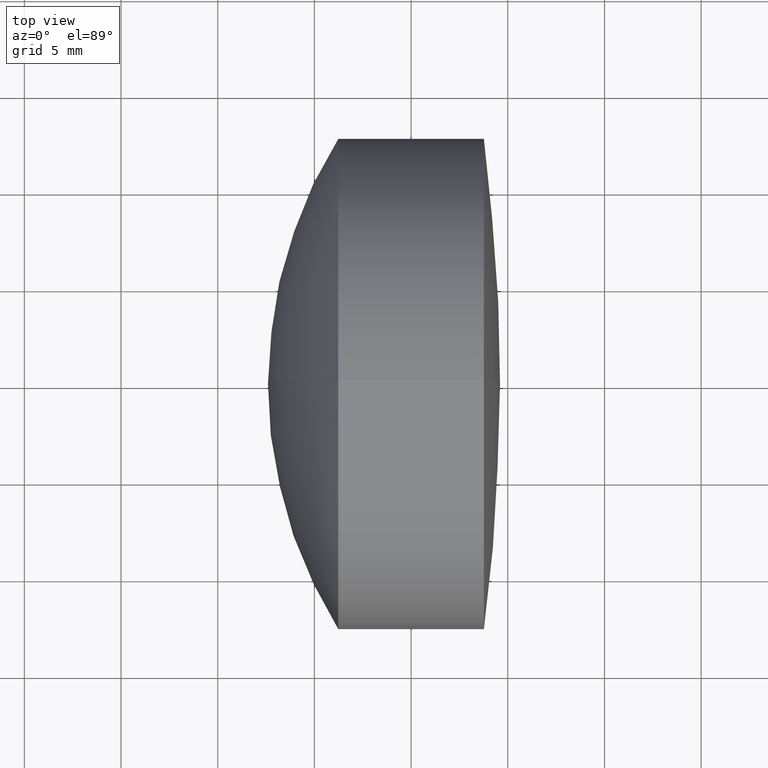
[diagram: clean part render]
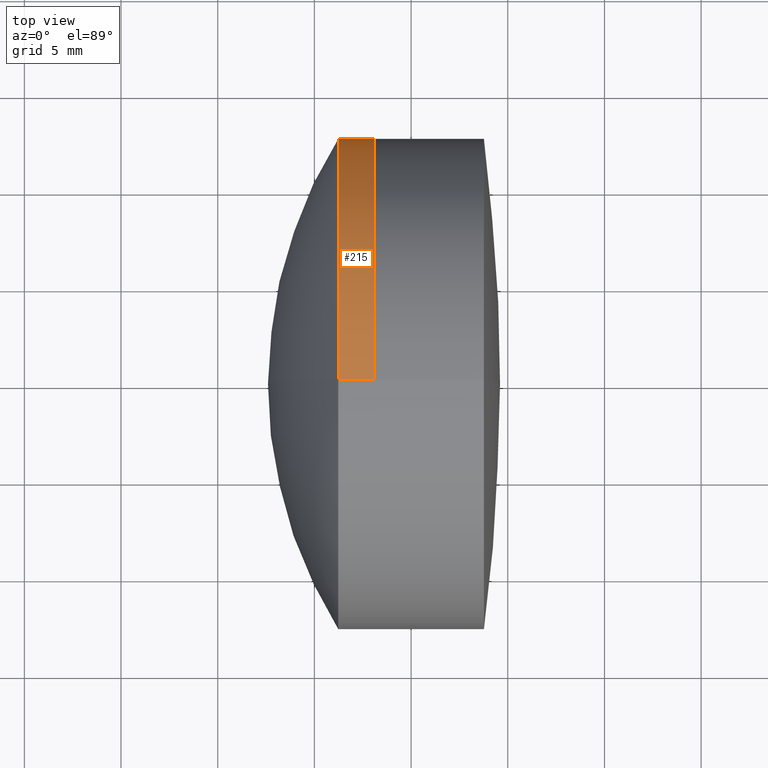
[diagram: same view with one face highlighted and labeled with its STEP entity id]
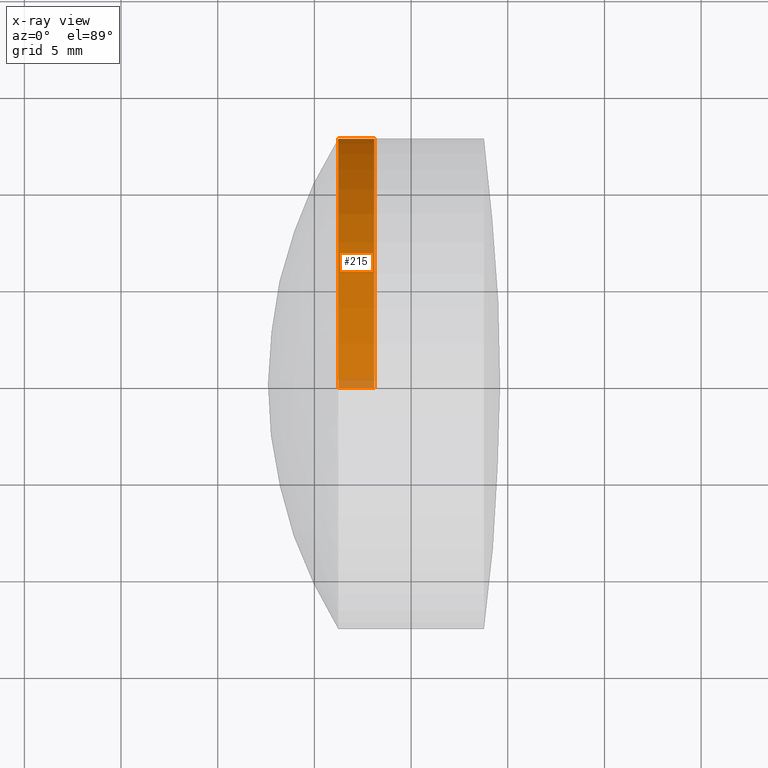
[diagram: x-ray of the same camera — body ghosted, the highlighted face saturated]
A machine part, top view. The second image highlights one B-rep face of the part: STEP entity #215.
The next image is the same camera in x-ray: the body ghosted, the highlighted face saturated — about 3% of this face is hidden behind the body in this view.
In plain terms, the highlighted cylindrical surface (partial cylindrical patch) has radius 12.7 mm, axis along (-1, -0, -0).
Its self-contained STEP definition (entity closure, byte-faithful):
#10 = LINE ( 'NONE', #207, #269 ) ;
#41 = LINE ( 'NONE', #91, #118 ) ;
#42 = VERTEX_POINT ( 'NONE', #95 ) ;
#43 = DIRECTION ( 'NONE',  ( -1.000000000000000000, -0.0000000000000000000, -0.0000000000000000000 ) ) ;
#50 = ORIENTED_EDGE ( 'NONE', *, *, #131, .T. ) ;
#65 = EDGE_CURVE ( 'NONE', #267, #278, #258, .T. ) ;
#67 = EDGE_LOOP ( 'NONE', ( #50, #214, #169, #92 ) ) ;
#72 = CARTESIAN_POINT ( 'NONE',  ( 276.2363429916271700, 0.0000000000000000000, -12.69999999999999900 ) ) ;
#91 = CARTESIAN_POINT ( 'NONE',  ( 124.5233095260452400, 0.0000000000000000000, 12.70000000000000600 ) ) ;
#92 = ORIENTED_EDGE ( 'NONE', *, *, #123, .F. ) ;
#95 = CARTESIAN_POINT ( 'NONE',  ( 278.0956821889693100, 0.0000000000000000000, 12.70000000000000600 ) ) ;
#96 = DIRECTION ( 'NONE',  ( -1.000000000000000000, -0.0000000000000000000, -0.0000000000000000000 ) ) ;
#103 = AXIS2_PLACEMENT_3D ( 'NONE', #270, #205, #116 ) ;
#116 = DIRECTION ( 'NONE',  ( 0.0000000000000000000, 0.0000000000000000000, 1.000000000000000000 ) ) ;
#118 = VECTOR ( 'NONE', #149, 1000.000000000000000 ) ;
#123 = EDGE_CURVE ( 'NONE', #42, #267, #41, .T. ) ;
#131 = EDGE_CURVE ( 'NONE', #42, #190, #201, .T. ) ;
#136 = FACE_OUTER_BOUND ( 'NONE', #67, .T. ) ;
#149 = DIRECTION ( 'NONE',  ( -1.000000000000000000, -0.0000000000000000000, -0.0000000000000000000 ) ) ;
#152 = DIRECTION ( 'NONE',  ( 0.0000000000000000000, 0.0000000000000000000, 1.000000000000000000 ) ) ;
#153 = AXIS2_PLACEMENT_3D ( 'NONE', #336, #96, #152 ) ;
#169 = ORIENTED_EDGE ( 'NONE', *, *, #65, .F. ) ;
#177 = CARTESIAN_POINT ( 'NONE',  ( 278.0956821889693100, 1.555301434917139200E-015, -12.70000000000000600 ) ) ;
#178 = EDGE_CURVE ( 'NONE', #190, #278, #10, .T. ) ;
#190 = VERTEX_POINT ( 'NONE', #177 ) ;
#194 = CYLINDRICAL_SURFACE ( 'NONE', #153, 12.70000000000000600 ) ;
#200 = CARTESIAN_POINT ( 'NONE',  ( 276.2363429916271700, 0.0000000000000000000, 0.0000000000000000000 ) ) ;
#201 = CIRCLE ( 'NONE', #103, 12.70000000000000600 ) ;
#205 = DIRECTION ( 'NONE',  ( -1.000000000000000000, -0.0000000000000000000, -0.0000000000000000000 ) ) ;
#207 = CARTESIAN_POINT ( 'NONE',  ( 124.5233095260452400, 1.555301434917139200E-015, -12.70000000000000600 ) ) ;
#214 = ORIENTED_EDGE ( 'NONE', *, *, #178, .T. ) ;
#215 = ADVANCED_FACE ( 'NONE', ( #136 ), #194, .T. ) ;
#258 = CIRCLE ( 'NONE', #263, 12.70000000000000600 ) ;
#263 = AXIS2_PLACEMENT_3D ( 'NONE', #200, #280, #282 ) ;
#267 = VERTEX_POINT ( 'NONE', #275 ) ;
#269 = VECTOR ( 'NONE', #43, 1000.000000000000000 ) ;
#270 = CARTESIAN_POINT ( 'NONE',  ( 278.0956821889693100, 0.0000000000000000000, 0.0000000000000000000 ) ) ;
#275 = CARTESIAN_POINT ( 'NONE',  ( 276.2363429916271700, -1.555301434917138400E-015, 12.70000000000000600 ) ) ;
#278 = VERTEX_POINT ( 'NONE', #72 ) ;
#280 = DIRECTION ( 'NONE',  ( -1.000000000000000000, -0.0000000000000000000, -0.0000000000000000000 ) ) ;
#282 = DIRECTION ( 'NONE',  ( 0.0000000000000000000, 0.0000000000000000000, 1.000000000000000000 ) ) ;
#336 = CARTESIAN_POINT ( 'NONE',  ( 124.5233095260452400, 0.0000000000000000000, 0.0000000000000000000 ) ) ;